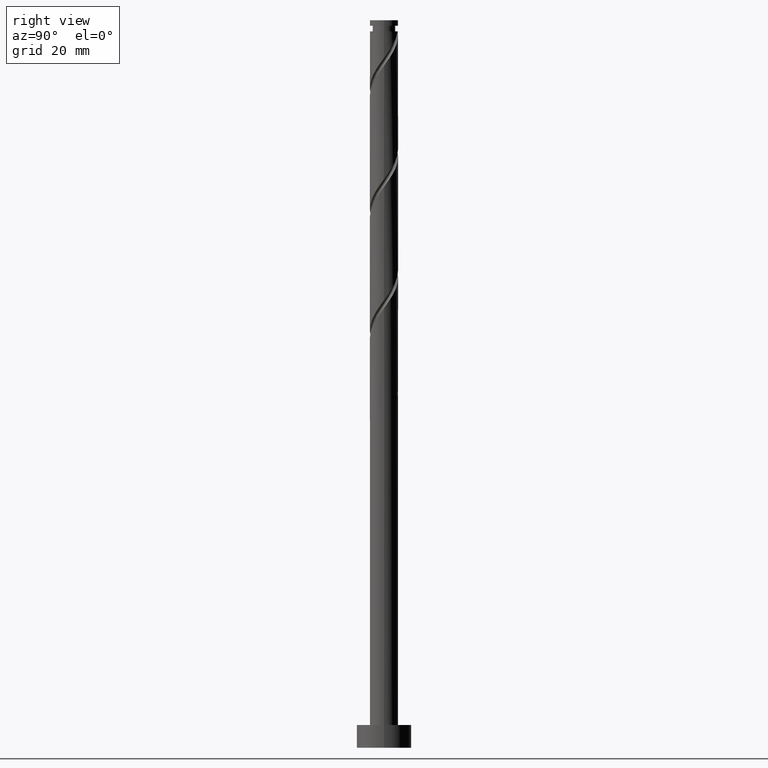
[diagram: clean part render]
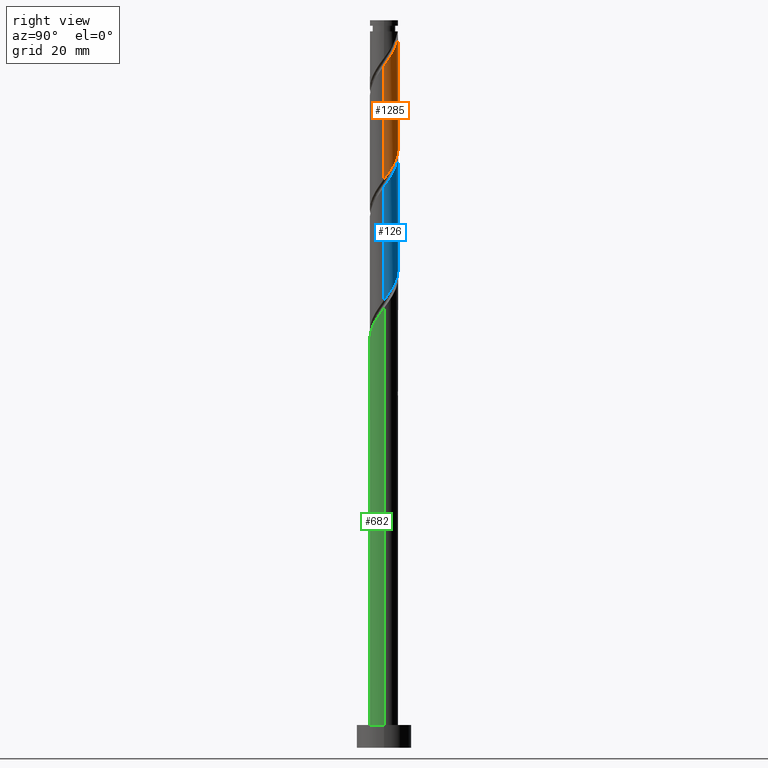
[diagram: same view with three faces highlighted in distinct colors, each labeled with its STEP entity id]
A machine part, right view with three faces highlighted in distinct colors.
Their STEP definitions:

[orange] entity #1285 — the highlighted cylindrical surface (edge-blend (fillet) strip) has radius 3.1 mm, axis along (-0, -0, -1).
#9 = ORIENTED_EDGE ( 'NONE', *, *, #963, .F. ) ;
#33 = ORIENTED_EDGE ( 'NONE', *, *, #351, .T. ) ;
#99 = CARTESIAN_POINT ( 'NONE',  ( -3.094870455675655663, 0.1782606591089399839, 138.1700310285650630 ) ) ;
#123 = FACE_OUTER_BOUND ( 'NONE', #1371, .T. ) ;
#209 = CARTESIAN_POINT ( 'NONE',  ( 0.6168922110061062503, 3.037999999999999368, 130.8973037558378110 ) ) ;
#216 = ORIENTED_EDGE ( 'NONE', *, *, #325, .F. ) ;
#226 = CARTESIAN_POINT ( 'NONE',  ( 2.161429555315029560, 2.222211123500796859, 128.4730613315954031 ) ) ;
#243 = CARTESIAN_POINT ( 'NONE',  ( 3.094870455675660548, 0.1782606591089390125, 150.2912431497771877 ) ) ;
#249 = DIRECTION ( 'NONE',  ( -0.000000000000000000, -0.000000000000000000, -1.000000000000000000 ) ) ;
#263 = VECTOR ( 'NONE', #1590, 1000.000000000000000 ) ;
#267 = CARTESIAN_POINT ( 'NONE',  ( 3.100000000000004974, 2.437961774669903870E-15, 150.0478492765368799 ) ) ;
#321 = CARTESIAN_POINT ( 'NONE',  ( 3.099999999999998757, 4.561830314566420903E-15, 125.0800915684720280 ) ) ;
#325 = EDGE_CURVE ( 'NONE', #1197, #795, #489, .T. ) ;
#351 = EDGE_CURVE ( 'NONE', #1625, #999, #1132, .T. ) ;
#378 = CARTESIAN_POINT ( 'NONE',  ( 3.100000000000000089, 3.796405077356794918E-16, 160.0000000000000000 ) ) ;
#479 = CARTESIAN_POINT ( 'NONE',  ( -3.100000000000000089, -8.375819593958018051E-16, 138.4134249018053140 ) ) ;
#484 = CARTESIAN_POINT ( 'NONE',  ( 2.699945692952823606, 1.523250883835454372, 127.2609401194741707 ) ) ;
#486 = CARTESIAN_POINT ( 'NONE',  ( -2.769328808163226796, 1.462695379553409003, 136.3518492103832500 ) ) ;
#489 =( BOUNDED_CURVE ( )  B_SPLINE_CURVE ( 2, ( #479, #1373, #99, #1255, #612, #486, #748, #495, #625, #995, #1128, #1645, #502, #610, #209, #1448, #721, #1627, #226, #1114, #484, #1095, #706, #739, #321 ),
 .UNSPECIFIED., .F., .T. ) 
 B_SPLINE_CURVE_WITH_KNOTS ( ( 3, 2, 2, 2, 2, 2, 2, 2, 2, 2, 2, 2, 3 ),
 ( 0.4295252162417514397, 0.4318181818181818232, 0.4431818181818181768, 0.4545454545454545303, 0.4659090909090908839, 0.4772727272727272929, 0.4886363636363636465, 0.5000000000000000000, 0.5113636363636363535, 0.5227272727272727071, 0.5340909090909090606, 0.5454545454545454142, 0.5545252162417511066 ),
 .UNSPECIFIED. ) 
 CURVE ( )  GEOMETRIC_REPRESENTATION_ITEM ( )  RATIONAL_B_SPLINE_CURVE ( ( 0.9061101570135575711, 0.9072237824201397904, 0.9090909090909171653, 0.8998376744372194036, 0.9090909090909171653, 0.8998376744372194036, 0.9090909090909171653, 0.8998376744372194036, 0.9090909090909171653, 0.8998376744372194036, 0.9090909090909171653, 0.8998376744372194036, 0.9090909090909171653, 0.8998376744372194036, 0.9090909090909171653, 0.8998376744372194036, 0.9090909090909171653, 0.8998376744372194036, 0.9090909090909171653, 0.8998376744372194036, 0.9090909090909171653, 0.8998376744372194036, 0.9090909090909171653, 0.9017048011079971115, 0.9061101570135573491 ) ) 
 REPRESENTATION_ITEM ( '' )  );
#495 = CARTESIAN_POINT ( 'NONE',  ( -2.245062623899099830, 2.183656025078341667, 135.1397279982620319 ) ) ;
#502 = CARTESIAN_POINT ( 'NONE',  ( -0.2639997657463932224, 3.088738273743155016, 132.1094249679590291 ) ) ;
#568 = CARTESIAN_POINT ( 'NONE',  ( -0.6168922110061536568, 3.038000000000660616, 157.5639704225043829 ) ) ;
#597 = CARTESIAN_POINT ( 'NONE',  ( 3.069240442222558318, 0.6232358533614310581, 150.8973037558378394 ) ) ;
#610 = CARTESIAN_POINT ( 'NONE',  ( 0.1800937538493764256, 3.126695709677243862, 131.5033643618984058 ) ) ;
#612 = CARTESIAN_POINT ( 'NONE',  ( -2.919284625192889671, 1.042965616457419697, 136.9579098164439017 ) ) ;
#616 = EDGE_CURVE ( 'NONE', #1313, #795, #1001, .T. ) ;
#622 = ORIENTED_EDGE ( 'NONE', *, *, #1492, .F. ) ;
#625 = CARTESIAN_POINT ( 'NONE',  ( -1.891988720823647885, 2.455682935616096962, 134.5336673922014370 ) ) ;
#631 = CYLINDRICAL_SURFACE ( 'NONE', #1000, 3.100000000000000089 ) ;
#663 =( BOUNDED_CURVE ( )  B_SPLINE_CURVE ( 2, ( #734, #1374, #243, #597, #1100, #944, #1578, #1085, #729, #1598, #1363, #1119, #1336, #1626, #1613 ),
 .UNSPECIFIED., .F., .T. ) 
 B_SPLINE_CURVE_WITH_KNOTS ( ( 3, 2, 2, 2, 2, 2, 2, 3 ),
 ( 0.6795252162417511066, 0.6818181818181818787, 0.6931818181818181213, 0.7045454545454545858, 0.7159090909090908283, 0.7272727272727272929, 0.7386363636363636465, 0.7500000000000000000 ),
 .UNSPECIFIED. ) 
 CURVE ( )  GEOMETRIC_REPRESENTATION_ITEM ( )  RATIONAL_B_SPLINE_CURVE ( ( 0.9061101570135644545, 0.9072237824201466738, 0.9090909090909243817, 0.8998376744372265090, 0.9090909090909243817, 0.8998376744372265090, 0.9090909090909243817, 0.8998376744372265090, 0.9090909090909243817, 0.8998376744372265090, 0.9090909090909243817, 0.8998376744372265090, 0.9090909090909243817, 0.8998376744372265090, 0.9090909090909243817 ) ) 
 REPRESENTATION_ITEM ( '' )  );
#697 = VECTOR ( 'NONE', #249, 1000.000000000000000 ) ;
#706 = CARTESIAN_POINT ( 'NONE',  ( 3.019728287742891037, 0.7008859166835853527, 126.0488189073529526 ) ) ;
#721 = CARTESIAN_POINT ( 'NONE',  ( 1.447807249622133252, 2.741141033938528704, 129.6851825437165928 ) ) ;
#729 = CARTESIAN_POINT ( 'NONE',  ( 1.891988720823650993, 2.455682935616100959, 153.9276067861408706 ) ) ;
#734 = CARTESIAN_POINT ( 'NONE',  ( 3.100000000000004974, 2.437961774669903870E-15, 150.0478492765369083 ) ) ;
#739 = CARTESIAN_POINT ( 'NONE',  ( 3.099999999999997868, 0.3550396748938861591, 125.5660515214433133 ) ) ;
#748 = CARTESIAN_POINT ( 'NONE',  ( -2.507195716031161759, 1.823175702315874780, 135.7457886043226551 ) ) ;
#795 = VERTEX_POINT ( 'NONE', #1026 ) ;
#851 = DIRECTION ( 'NONE',  ( -0.000000000000000000, -0.000000000000000000, -1.000000000000000000 ) ) ;
#899 = ORIENTED_EDGE ( 'NONE', *, *, #616, .T. ) ;
#944 = CARTESIAN_POINT ( 'NONE',  ( 2.769328808163231681, 1.462695379553409891, 152.1094249679590291 ) ) ;
#949 = LINE ( 'NONE', #1195, #263 ) ;
#952 = CARTESIAN_POINT ( 'NONE',  ( 0.000000000000000000, 0.000000000000000000, 157.5639704225044682 ) ) ;
#959 = DIRECTION ( 'NONE',  ( -1.000000000000000000, 0.000000000000000000, 0.000000000000000000 ) ) ;
#963 = EDGE_CURVE ( 'NONE', #1625, #1197, #949, .T. ) ;
#995 = CARTESIAN_POINT ( 'NONE',  ( -1.538914817748198605, 2.727709846153853590, 133.9276067861408421 ) ) ;
#999 = VERTEX_POINT ( 'NONE', #568 ) ;
#1000 = AXIS2_PLACEMENT_3D ( 'NONE', #1136, #1654, #1011 ) ;
#1001 = LINE ( 'NONE', #378, #697 ) ;
#1002 = CARTESIAN_POINT ( 'NONE',  ( -3.099999999999999645, -8.375819593958018051E-16, 138.4134249018053140 ) ) ;
#1011 = DIRECTION ( 'NONE',  ( -1.000000000000000000, 0.000000000000000000, 0.000000000000000000 ) ) ;
#1026 = CARTESIAN_POINT ( 'NONE',  ( 3.099999999999998757, 4.561830314566420903E-15, 125.0800915684720280 ) ) ;
#1085 = CARTESIAN_POINT ( 'NONE',  ( 2.245062623899104715, 2.183656025078342999, 153.3215461800802757 ) ) ;
#1095 = CARTESIAN_POINT ( 'NONE',  ( 2.918956106357021074, 1.135057298223619782, 126.6548795134135617 ) ) ;
#1100 = CARTESIAN_POINT ( 'NONE',  ( 2.919284625192895000, 1.042965616457420364, 151.5033643618984058 ) ) ;
#1114 = CARTESIAN_POINT ( 'NONE',  ( 2.480935279548627026, 1.911444469447287853, 127.8670007255347798 ) ) ;
#1119 = CARTESIAN_POINT ( 'NONE',  ( 0.7080932853421650908, 3.050780837809071055, 155.7457886043226267 ) ) ;
#1128 = CARTESIAN_POINT ( 'NONE',  ( -1.123504051545180182, 2.889245341981459436, 133.3215461800802473 ) ) ;
#1132 = CIRCLE ( 'NONE', #1652, 3.099999999999993427 ) ;
#1136 = CARTESIAN_POINT ( 'NONE',  ( 0.000000000000000000, 0.000000000000000000, 160.0000000000000000 ) ) ;
#1195 = CARTESIAN_POINT ( 'NONE',  ( -3.100000000000000089, 0.000000000000000000, 160.0000000000000000 ) ) ;
#1197 = VERTEX_POINT ( 'NONE', #1002 ) ;
#1255 = CARTESIAN_POINT ( 'NONE',  ( -3.069240442222553433, 0.6232358533614315022, 137.5639704225045250 ) ) ;
#1285 = ADVANCED_FACE ( 'NONE', ( #123 ), #631, .T. ) ;
#1313 = VERTEX_POINT ( 'NONE', #267 ) ;
#1336 = CARTESIAN_POINT ( 'NONE',  ( 0.2639997657463944991, 3.088738273743160345, 156.3518492103832216 ) ) ;
#1363 = CARTESIAN_POINT ( 'NONE',  ( 1.123504051545182625, 2.889245341981463877, 155.1397279982620034 ) ) ;
#1371 = EDGE_LOOP ( 'NONE', ( #622, #899, #216, #9, #33 ) ) ;
#1373 = CARTESIAN_POINT ( 'NONE',  ( -3.099999999999999201, 0.08920413222385399632, 138.2913268970871172 ) ) ;
#1374 = CARTESIAN_POINT ( 'NONE',  ( 3.100000000000004530, 0.08920413222383878626, 150.1699472812551051 ) ) ;
#1416 = CARTESIAN_POINT ( 'NONE',  ( -3.099999999999993427, 0.000000000000000000, 157.5639704225044682 ) ) ;
#1448 = CARTESIAN_POINT ( 'NONE',  ( 1.053690668162834632, 2.949304290322753985, 130.2912431497772161 ) ) ;
#1492 = EDGE_CURVE ( 'NONE', #1313, #999, #663, .T. ) ;
#1578 = CARTESIAN_POINT ( 'NONE',  ( 2.507195716031167976, 1.823175702315876556, 152.7154855740196240 ) ) ;
#1590 = DIRECTION ( 'NONE',  ( -0.000000000000000000, -0.000000000000000000, -1.000000000000000000 ) ) ;
#1598 = CARTESIAN_POINT ( 'NONE',  ( 1.538914817748200825, 2.727709846153857587, 154.5336673922014370 ) ) ;
#1613 = CARTESIAN_POINT ( 'NONE',  ( -0.6168922110061536568, 3.038000000000660616, 157.5639704225043829 ) ) ;
#1625 = VERTEX_POINT ( 'NONE', #1416 ) ;
#1626 = CARTESIAN_POINT ( 'NONE',  ( -0.1800937538493757040, 3.126695709677248747, 156.9579098164439017 ) ) ;
#1627 = CARTESIAN_POINT ( 'NONE',  ( 1.841923831081432095, 2.532977777554304755, 129.0791219376559980 ) ) ;
#1645 = CARTESIAN_POINT ( 'NONE',  ( -0.7080932853421627593, 3.050780837809067059, 132.7154855740196240 ) ) ;
#1652 = AXIS2_PLACEMENT_3D ( 'NONE', #952, #851, #959 ) ;
#1654 = DIRECTION ( 'NONE',  ( -0.000000000000000000, -0.000000000000000000, -1.000000000000000000 ) ) ;

[blue] entity #126 — the highlighted cylindrical surface (edge-blend (fillet) strip) has radius 3.1 mm, axis along (-0, -0, -1).
#7 = CARTESIAN_POINT ( 'NONE',  ( -2.480935279548631467, 1.911444469447291183, 133.9276067861408421 ) ) ;
#47 = CARTESIAN_POINT ( 'NONE',  ( -1.123504051545180182, 2.889245341981459436, 106.6548795134135759 ) ) ;
#85 = CARTESIAN_POINT ( 'NONE',  ( 2.919284625192895000, 1.042965616457420364, 124.8366976952317202 ) ) ;
#90 = CARTESIAN_POINT ( 'NONE',  ( 2.480935279548627026, 1.911444469447287853, 101.2003340588681084 ) ) ;
#97 = CARTESIAN_POINT ( 'NONE',  ( 3.099999999999998757, 0.3550396748938818847, 98.89938485477667029 ) ) ;
#103 = CARTESIAN_POINT ( 'NONE',  ( -3.019728287742894590, 0.7008859166835882393, 135.7457886043226267 ) ) ;
#109 = CARTESIAN_POINT ( 'NONE',  ( 1.841923831081432095, 2.532977777554304755, 102.4124552709893408 ) ) ;
#115 = DIRECTION ( 'NONE',  ( -0.000000000000000000, -0.000000000000000000, -1.000000000000000000 ) ) ;
#126 = ADVANCED_FACE ( 'NONE', ( #247 ), #629, .T. ) ;
#128 = CARTESIAN_POINT ( 'NONE',  ( 3.100000000000004974, 2.437961774669903870E-15, 123.3811826098702511 ) ) ;
#131 = CARTESIAN_POINT ( 'NONE',  ( 0.7080932853421650908, 3.050780837809071055, 129.0791219376559980 ) ) ;
#141 = DIRECTION ( 'NONE',  ( -1.000000000000000000, 0.000000000000000000, 0.000000000000000000 ) ) ;
#156 = CARTESIAN_POINT ( 'NONE',  ( -1.538914817748198605, 2.727709846153853590, 107.2609401194741707 ) ) ;
#163 = AXIS2_PLACEMENT_3D ( 'NONE', #1133, #1651, #141 ) ;
#234 = ORIENTED_EDGE ( 'NONE', *, *, #1634, .F. ) ;
#239 = CARTESIAN_POINT ( 'NONE',  ( -2.161429555315033113, 2.222211123500799967, 133.3215461800802473 ) ) ;
#246 = CARTESIAN_POINT ( 'NONE',  ( 1.891988720823650993, 2.455682935616100959, 127.2609401194741423 ) ) ;
#247 = FACE_OUTER_BOUND ( 'NONE', #1513, .T. ) ;
#299 = CARTESIAN_POINT ( 'NONE',  ( -3.094870455675655663, 0.1782606591089399839, 111.5033643618984058 ) ) ;
#349 = CARTESIAN_POINT ( 'NONE',  ( 2.245062623899104715, 2.183656025078342999, 126.6548795134135617 ) ) ;
#361 = CARTESIAN_POINT ( 'NONE',  ( 2.918956106357021074, 1.135057298223619782, 99.98821284674690446 ) ) ;
#365 = LINE ( 'NONE', #506, #528 ) ;
#368 = CARTESIAN_POINT ( 'NONE',  ( 3.099999999999998757, 4.561830314566420903E-15, 98.41342490180535663 ) ) ;
#376 = CARTESIAN_POINT ( 'NONE',  ( -3.100000000000004530, 1.734991201605575895E-15, 136.7145159432035655 ) ) ;
#383 = LINE ( 'NONE', #1353, #1089 ) ;
#438 = CARTESIAN_POINT ( 'NONE',  ( 0.1800937538493764256, 3.126695709677243862, 104.8366976952317344 ) ) ;
#447 = CARTESIAN_POINT ( 'NONE',  ( -2.919284625192889671, 1.042965616457419697, 110.2912431497772161 ) ) ;
#468 = CARTESIAN_POINT ( 'NONE',  ( 3.100000000000004974, 2.437961774669903870E-15, 123.3811826098702511 ) ) ;
#498 = CARTESIAN_POINT ( 'NONE',  ( -1.447807249622134806, 2.741141033938533589, 132.1094249679590007 ) ) ;
#499 = CARTESIAN_POINT ( 'NONE',  ( 3.099999999999998757, 4.561830314566420903E-15, 98.41342490180535663 ) ) ;
#506 = CARTESIAN_POINT ( 'NONE',  ( 3.100000000000000089, 3.796405077356794918E-16, 160.0000000000000000 ) ) ;
#509 = CARTESIAN_POINT ( 'NONE',  ( 0.2639997657463944991, 3.088738273743160345, 129.6851825437165644 ) ) ;
#510 = EDGE_CURVE ( 'NONE', #1342, #600, #365, .T. ) ;
#519 = CARTESIAN_POINT ( 'NONE',  ( -2.699945692952827603, 1.523250883835457481, 134.5336673922014370 ) ) ;
#528 = VECTOR ( 'NONE', #115, 1000.000000000000000 ) ;
#600 = VERTEX_POINT ( 'NONE', #499 ) ;
#601 = CARTESIAN_POINT ( 'NONE',  ( 3.100000000000004974, 0.08920413222385088770, 123.5032806145885189 ) ) ;
#614 = CARTESIAN_POINT ( 'NONE',  ( -2.918956106357025515, 1.135057298223624000, 135.1397279982620034 ) ) ;
#621 = CARTESIAN_POINT ( 'NONE',  ( -0.1800937538493757040, 3.126695709677248747, 130.2912431497771877 ) ) ;
#629 = CYLINDRICAL_SURFACE ( 'NONE', #163, 3.100000000000000089 ) ;
#647 = CARTESIAN_POINT ( 'NONE',  ( -1.841923831081434759, 2.532977777554310528, 132.7154855740195956 ) ) ;
#653 = ORIENTED_EDGE ( 'NONE', *, *, #510, .T. ) ;
#657 = CARTESIAN_POINT ( 'NONE',  ( -2.245062623899099830, 2.183656025078341667, 108.4730613315954315 ) ) ;
#684 = CARTESIAN_POINT ( 'NONE',  ( -0.7080932853421627593, 3.050780837809067059, 106.0488189073529526 ) ) ;
#695 = CARTESIAN_POINT ( 'NONE',  ( -3.099999999999998757, 3.484939223914674838E-15, 111.7467582351386852 ) ) ;
#696 = CARTESIAN_POINT ( 'NONE',  ( -3.100000000000004530, 1.734991201605575895E-15, 136.7145159432035655 ) ) ;
#724 = CARTESIAN_POINT ( 'NONE',  ( 2.161429555315029560, 2.222211123500796859, 101.8063946649287175 ) ) ;
#727 =( BOUNDED_CURVE ( )  B_SPLINE_CURVE ( 2, ( #468, #601, #1229, #973, #85, #1104, #1483, #349, #246, #1268, #1251, #131, #509, #621, #1016, #1257, #498, #647, #239, #7, #519, #614, #103, #1531, #376 ),
 .UNSPECIFIED., .F., .T. ) 
 B_SPLINE_CURVE_WITH_KNOTS ( ( 3, 2, 2, 2, 2, 2, 2, 2, 2, 2, 2, 2, 3 ),
 ( 0.4295252162417513286, 0.4318181818181817677, 0.4431818181818182323, 0.4545454545454545858, 0.4659090909090909394, 0.4772727272727272929, 0.4886363636363636465, 0.5000000000000000000, 0.5113636363636363535, 0.5227272727272727071, 0.5340909090909091717, 0.5454545454545454142, 0.5545252162417513286 ),
 .UNSPECIFIED. ) 
 CURVE ( )  GEOMETRIC_REPRESENTATION_ITEM ( )  RATIONAL_B_SPLINE_CURVE ( ( 0.9061101570135646766, 0.9072237824201467848, 0.9090909090909243817, 0.8998376744372265090, 0.9090909090909243817, 0.8998376744372265090, 0.9090909090909243817, 0.8998376744372265090, 0.9090909090909243817, 0.8998376744372265090, 0.9090909090909243817, 0.8998376744372265090, 0.9090909090909243817, 0.8998376744372265090, 0.9090909090909243817, 0.8998376744372265090, 0.9090909090909243817, 0.8998376744372265090, 0.9090909090909243817, 0.8998376744372265090, 0.9090909090909243817, 0.8998376744372265090, 0.9090909090909243817, 0.9017048011080041059, 0.9061101570135645655 ) ) 
 REPRESENTATION_ITEM ( '' )  );
#744 = ORIENTED_EDGE ( 'NONE', *, *, #1008, .F. ) ;
#746 = CARTESIAN_POINT ( 'NONE',  ( 1.053690668162834632, 2.949304290322753985, 103.6245764831105305 ) ) ;
#790 = CARTESIAN_POINT ( 'NONE',  ( -3.099999999999998757, 0.08920413222384750151, 111.6246602304204316 ) ) ;
#834 =( BOUNDED_CURVE ( )  B_SPLINE_CURVE ( 2, ( #695, #790, #299, #1176, #447, #1053, #1557, #657, #1291, #156, #47, #684, #1066, #438, #1517, #746, #1246, #109, #724, #90, #967, #361, #1467, #97, #368 ),
 .UNSPECIFIED., .F., .T. ) 
 B_SPLINE_CURVE_WITH_KNOTS ( ( 3, 2, 2, 2, 2, 2, 2, 2, 2, 2, 2, 2, 3 ),
 ( 0.6795252162417512176, 0.6818181818181817677, 0.6931818181818182323, 0.7045454545454545858, 0.7159090909090909394, 0.7272727272727272929, 0.7386363636363636465, 0.7500000000000000000, 0.7613636363636363535, 0.7727272727272727071, 0.7840909090909090606, 0.7954545454545454142, 0.8045252162417512176 ),
 .UNSPECIFIED. ) 
 CURVE ( )  GEOMETRIC_REPRESENTATION_ITEM ( )  RATIONAL_B_SPLINE_CURVE ( ( 0.9061101570135574601, 0.9072237824201396794, 0.9090909090909171653, 0.8998376744372194036, 0.9090909090909171653, 0.8998376744372194036, 0.9090909090909171653, 0.8998376744372194036, 0.9090909090909171653, 0.8998376744372194036, 0.9090909090909171653, 0.8998376744372194036, 0.9090909090909171653, 0.8998376744372194036, 0.9090909090909171653, 0.8998376744372194036, 0.9090909090909171653, 0.8998376744372194036, 0.9090909090909171653, 0.8998376744372194036, 0.9090909090909171653, 0.8998376744372194036, 0.9090909090909171653, 0.9017048011079968894, 0.9061101570135574601 ) ) 
 REPRESENTATION_ITEM ( '' )  );
#967 = CARTESIAN_POINT ( 'NONE',  ( 2.699945692952823606, 1.523250883835454372, 100.5942734528074993 ) ) ;
#973 = CARTESIAN_POINT ( 'NONE',  ( 3.069240442222558318, 0.6232358533614310581, 124.2306370891711538 ) ) ;
#991 = VERTEX_POINT ( 'NONE', #696 ) ;
#1008 = EDGE_CURVE ( 'NONE', #991, #1539, #383, .T. ) ;
#1016 = CARTESIAN_POINT ( 'NONE',  ( -0.6168922110061050290, 3.038000000000004697, 130.8973037558378110 ) ) ;
#1053 = CARTESIAN_POINT ( 'NONE',  ( -2.769328808163226796, 1.462695379553409003, 109.6851825437166070 ) ) ;
#1066 = CARTESIAN_POINT ( 'NONE',  ( -0.2639997657463932224, 3.088738273743155016, 105.4427583012923435 ) ) ;
#1089 = VECTOR ( 'NONE', #1638, 1000.000000000000000 ) ;
#1104 = CARTESIAN_POINT ( 'NONE',  ( 2.769328808163231681, 1.462695379553409891, 125.4427583012923719 ) ) ;
#1133 = CARTESIAN_POINT ( 'NONE',  ( 0.000000000000000000, 0.000000000000000000, 160.0000000000000000 ) ) ;
#1176 = CARTESIAN_POINT ( 'NONE',  ( -3.069240442222553433, 0.6232358533614315022, 110.8973037558378536 ) ) ;
#1229 = CARTESIAN_POINT ( 'NONE',  ( 3.094870455675660548, 0.1782606591089390125, 123.6245764831105305 ) ) ;
#1246 = CARTESIAN_POINT ( 'NONE',  ( 1.447807249622133252, 2.741141033938528704, 103.0185158770499356 ) ) ;
#1251 = CARTESIAN_POINT ( 'NONE',  ( 1.123504051545182625, 2.889245341981463877, 128.4730613315953747 ) ) ;
#1257 = CARTESIAN_POINT ( 'NONE',  ( -1.053690668162835520, 2.949304290322760203, 131.5033643618984058 ) ) ;
#1268 = CARTESIAN_POINT ( 'NONE',  ( 1.538914817748200825, 2.727709846153857587, 127.8670007255347798 ) ) ;
#1291 = CARTESIAN_POINT ( 'NONE',  ( -1.891988720823647885, 2.455682935616096962, 107.8670007255347656 ) ) ;
#1295 = ORIENTED_EDGE ( 'NONE', *, *, #1556, .F. ) ;
#1342 = VERTEX_POINT ( 'NONE', #128 ) ;
#1343 = CARTESIAN_POINT ( 'NONE',  ( -3.099999999999998757, 3.484939223914675232E-15, 111.7467582351386852 ) ) ;
#1353 = CARTESIAN_POINT ( 'NONE',  ( -3.100000000000000089, 0.000000000000000000, 160.0000000000000000 ) ) ;
#1467 = CARTESIAN_POINT ( 'NONE',  ( 3.019728287742891037, 0.7008859166835853527, 99.38215224068628117 ) ) ;
#1483 = CARTESIAN_POINT ( 'NONE',  ( 2.507195716031167976, 1.823175702315876556, 126.0488189073529526 ) ) ;
#1513 = EDGE_LOOP ( 'NONE', ( #1295, #653, #234, #744 ) ) ;
#1517 = CARTESIAN_POINT ( 'NONE',  ( 0.6168922110061062503, 3.037999999999999368, 104.2306370891711254 ) ) ;
#1531 = CARTESIAN_POINT ( 'NONE',  ( -3.100000000000004530, 0.3550396748938834390, 136.2285559902322518 ) ) ;
#1539 = VERTEX_POINT ( 'NONE', #1343 ) ;
#1556 = EDGE_CURVE ( 'NONE', #1342, #991, #727, .T. ) ;
#1557 = CARTESIAN_POINT ( 'NONE',  ( -2.507195716031161759, 1.823175702315874780, 109.0791219376559553 ) ) ;
#1634 = EDGE_CURVE ( 'NONE', #1539, #600, #834, .T. ) ;
#1638 = DIRECTION ( 'NONE',  ( -0.000000000000000000, -0.000000000000000000, -1.000000000000000000 ) ) ;
#1651 = DIRECTION ( 'NONE',  ( -0.000000000000000000, -0.000000000000000000, -1.000000000000000000 ) ) ;

[green] entity #682 — the highlighted cylindrical surface (edge-blend (fillet) strip) has radius 3.1 mm, axis along (-0, -0, -1).
#27 = DIRECTION ( 'NONE',  ( -0.000000000000000000, -0.000000000000000000, -1.000000000000000000 ) ) ;
#36 = CARTESIAN_POINT ( 'NONE',  ( 1.447807249622134140, -2.741141033938534477, 92.10942496795898649 ) ) ;
#48 = CARTESIAN_POINT ( 'NONE',  ( 3.100000000000004974, 2.437961774669903870E-15, 96.71451594320359391 ) ) ;
#73 = AXIS2_PLACEMENT_3D ( 'NONE', #257, #1379, #250 ) ;
#140 = CARTESIAN_POINT ( 'NONE',  ( 2.161429555315033113, -2.222211123500799967, 93.32154618008023306 ) ) ;
#173 = CARTESIAN_POINT ( 'NONE',  ( 3.019728287742894590, -0.7008859166835876842, 95.74578860432264094 ) ) ;
#177 = CARTESIAN_POINT ( 'NONE',  ( -3.100000000000004974, -0.08920413222384115937, 83.50328061458844786 ) ) ;
#200 = CARTESIAN_POINT ( 'NONE',  ( -3.100000000000000089, 0.000000000000000000, 160.0000000000000000 ) ) ;
#214 = CARTESIAN_POINT ( 'NONE',  ( -1.123504051545183957, -2.889245341981463877, 88.47306133159537467 ) ) ;
#250 = DIRECTION ( 'NONE',  ( 1.000000000000000000, 0.000000000000000000, 0.000000000000000000 ) ) ;
#257 = CARTESIAN_POINT ( 'NONE',  ( 0.000000000000000000, 0.000000000000000000, 5.000000000000000000 ) ) ;
#291 = CARTESIAN_POINT ( 'NONE',  ( -0.2639997657463941660, -3.088738273743160345, 89.68518254371659282 ) ) ;
#292 = AXIS2_PLACEMENT_3D ( 'NONE', #1442, #1554, #814 ) ;
#300 = LINE ( 'NONE', #520, #1242 ) ;
#305 = CARTESIAN_POINT ( 'NONE',  ( -2.919284625192894556, -1.042965616457420808, 84.83669769523172022 ) ) ;
#334 = DIRECTION ( 'NONE',  ( -0.000000000000000000, -0.000000000000000000, -1.000000000000000000 ) ) ;
#377 = ORIENTED_EDGE ( 'NONE', *, *, #770, .F. ) ;
#398 = VERTEX_POINT ( 'NONE', #1329 ) ;
#429 = CARTESIAN_POINT ( 'NONE',  ( 1.841923831081435203, -2.532977777554310084, 92.71548557401962398 ) ) ;
#433 = CARTESIAN_POINT ( 'NONE',  ( -3.094870455675660548, -0.1782606591089394288, 83.62457648311053049 ) ) ;
#520 = CARTESIAN_POINT ( 'NONE',  ( 3.100000000000000089, 3.796405077356794918E-16, 160.0000000000000000 ) ) ;
#526 = VERTEX_POINT ( 'NONE', #888 ) ;
#531 = CARTESIAN_POINT ( 'NONE',  ( 2.918956106357025959, -1.135057298223623334, 95.13972799826204607 ) ) ;
#671 = FACE_OUTER_BOUND ( 'NONE', #1605, .T. ) ;
#682 = ADVANCED_FACE ( 'NONE', ( #671 ), #935, .T. ) ;
#690 = CARTESIAN_POINT ( 'NONE',  ( -2.769328808163231237, -1.462695379553411223, 85.44275830129235771 ) ) ;
#761 = EDGE_CURVE ( 'NONE', #526, #807, #1040, .T. ) ;
#770 = EDGE_CURVE ( 'NONE', #807, #1447, #300, .T. ) ;
#783 = CARTESIAN_POINT ( 'NONE',  ( 3.100000000000004974, 2.437961774669903870E-15, 96.71451594320359391 ) ) ;
#791 = CARTESIAN_POINT ( 'NONE',  ( 3.100000000000006750, -0.3550396748938767222, 96.22855599023228024 ) ) ;
#800 = CARTESIAN_POINT ( 'NONE',  ( 2.480935279548631467, -1.911444469447291405, 93.92760678614085634 ) ) ;
#807 = VERTEX_POINT ( 'NONE', #783 ) ;
#814 = DIRECTION ( 'NONE',  ( -1.000000000000000000, 0.000000000000000000, 0.000000000000000000 ) ) ;
#857 = LINE ( 'NONE', #200, #1216 ) ;
#888 = CARTESIAN_POINT ( 'NONE',  ( -3.100000000000004974, -2.602486802408363941E-15, 83.38118260987026531 ) ) ;
#935 = CYLINDRICAL_SURFACE ( 'NONE', #292, 3.100000000000000089 ) ;
#957 = CARTESIAN_POINT ( 'NONE',  ( -1.891988720823651660, -2.455682935616100071, 87.26094011947415652 ) ) ;
#1040 =( BOUNDED_CURVE ( )  B_SPLINE_CURVE ( 2, ( #1562, #177, #433, #1436, #305, #690, #1189, #1583, #957, #1472, #214, #1463, #291, #1186, #1417, #1433, #36, #429, #140, #800, #1169, #531, #173, #791, #48 ),
 .UNSPECIFIED., .F., .T. ) 
 B_SPLINE_CURVE_WITH_KNOTS ( ( 3, 2, 2, 2, 2, 2, 2, 2, 2, 2, 2, 2, 3 ),
 ( 0.05452521624175107190, 0.05681818181818176772, 0.06818181818181823228, 0.07954545454545458583, 0.09090909090909093937, 0.1022727272727272929, 0.1136363636363636465, 0.1250000000000000000, 0.1363636363636363535, 0.1477272727272727071, 0.1590909090909090606, 0.1704545454545454142, 0.1795252162417514119 ),
 .UNSPECIFIED. ) 
 CURVE ( )  GEOMETRIC_REPRESENTATION_ITEM ( )  RATIONAL_B_SPLINE_CURVE ( ( 0.9061101570135644545, 0.9072237824201466738, 0.9090909090909243817, 0.8998376744372265090, 0.9090909090909243817, 0.8998376744372265090, 0.9090909090909243817, 0.8998376744372265090, 0.9090909090909243817, 0.8998376744372265090, 0.9090909090909243817, 0.8998376744372265090, 0.9090909090909243817, 0.8998376744372265090, 0.9090909090909243817, 0.8998376744372265090, 0.9090909090909243817, 0.8998376744372265090, 0.9090909090909243817, 0.8998376744372265090, 0.9090909090909243817, 0.8998376744372265090, 0.9090909090909243817, 0.9017048011080039949, 0.9061101570135647876 ) ) 
 REPRESENTATION_ITEM ( '' )  );
#1113 = ORIENTED_EDGE ( 'NONE', *, *, #1212, .T. ) ;
#1169 = CARTESIAN_POINT ( 'NONE',  ( 2.699945692952827159, -1.523250883835457703, 94.53366739220139436 ) ) ;
#1185 = CARTESIAN_POINT ( 'NONE',  ( 3.100000000000000089, 3.796405077356794918E-16, 5.000000000000000000 ) ) ;
#1186 = CARTESIAN_POINT ( 'NONE',  ( 0.1800937538493760925, -3.126695709677248747, 90.29124314977721610 ) ) ;
#1189 = CARTESIAN_POINT ( 'NONE',  ( -2.507195716031167088, -1.823175702315877222, 86.04881890735295258 ) ) ;
#1212 = EDGE_CURVE ( 'NONE', #398, #1447, #1450, .T. ) ;
#1216 = VECTOR ( 'NONE', #334, 1000.000000000000000 ) ;
#1242 = VECTOR ( 'NONE', #27, 1000.000000000000000 ) ;
#1329 = CARTESIAN_POINT ( 'NONE',  ( -3.100000000000000089, 0.000000000000000000, 5.000000000000000000 ) ) ;
#1379 = DIRECTION ( 'NONE',  ( 0.000000000000000000, 0.000000000000000000, 1.000000000000000000 ) ) ;
#1384 = ORIENTED_EDGE ( 'NONE', *, *, #1524, .T. ) ;
#1417 = CARTESIAN_POINT ( 'NONE',  ( 0.6168922110061052511, -3.038000000000004697, 90.89730375583783939 ) ) ;
#1433 = CARTESIAN_POINT ( 'NONE',  ( 1.053690668162835076, -2.949304290322761091, 91.50336436189840583 ) ) ;
#1436 = CARTESIAN_POINT ( 'NONE',  ( -3.069240442222558318, -0.6232358533614313911, 84.23063708917115378 ) ) ;
#1442 = CARTESIAN_POINT ( 'NONE',  ( 0.000000000000000000, 0.000000000000000000, 160.0000000000000000 ) ) ;
#1447 = VERTEX_POINT ( 'NONE', #1185 ) ;
#1450 = CIRCLE ( 'NONE', #73, 3.100000000000000089 ) ;
#1463 = CARTESIAN_POINT ( 'NONE',  ( -0.7080932853421647577, -3.050780837809071500, 89.07912193765599795 ) ) ;
#1472 = CARTESIAN_POINT ( 'NONE',  ( -1.538914817748201713, -2.727709846153856699, 87.86700072553479401 ) ) ;
#1524 = EDGE_CURVE ( 'NONE', #526, #398, #857, .T. ) ;
#1554 = DIRECTION ( 'NONE',  ( -0.000000000000000000, -0.000000000000000000, -1.000000000000000000 ) ) ;
#1562 = CARTESIAN_POINT ( 'NONE',  ( -3.100000000000004974, -2.602486802408363546E-15, 83.38118260987026531 ) ) ;
#1583 = CARTESIAN_POINT ( 'NONE',  ( -2.245062623899102938, -2.183656025078344332, 86.65487951341357586 ) ) ;
#1605 = EDGE_LOOP ( 'NONE', ( #377, #1663, #1384, #1113 ) ) ;
#1663 = ORIENTED_EDGE ( 'NONE', *, *, #761, .F. ) ;